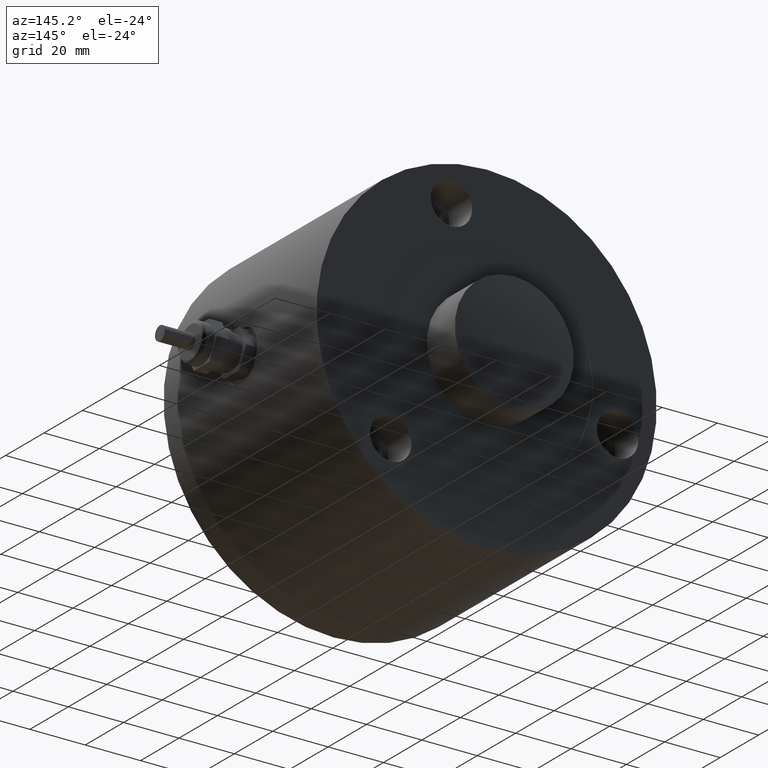
[diagram: clean part render]
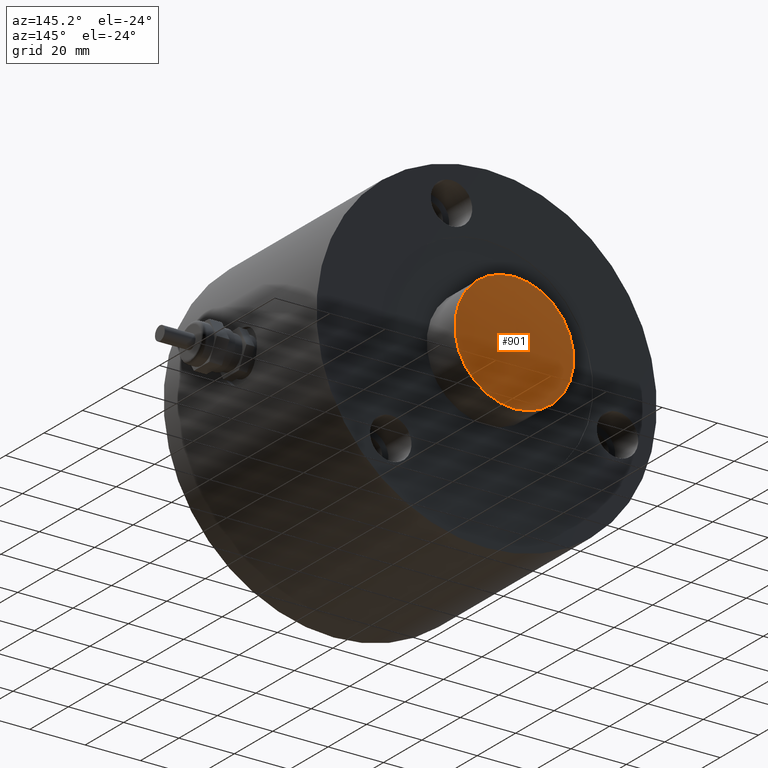
[diagram: same view with one face highlighted and labeled with its STEP entity id]
A machine part, auxiliary view. The second image highlights one B-rep face of the part: STEP entity #901.
In plain terms, the highlighted face is a freeform B-spline surface patch.
Its self-contained STEP definition (entity closure, byte-faithful):
#43=(
BOUNDED_SURFACE()
B_SPLINE_SURFACE(2,2,((#1602,#1603,#1604,#1605,#1606,#1607,#1608,#1609,
#1610),(#1611,#1612,#1613,#1614,#1615,#1616,#1617,#1618,#1619),(#1620,#1621,
#1622,#1623,#1624,#1625,#1626,#1627,#1628)),.UNSPECIFIED.,.F.,.T.,.F.)
B_SPLINE_SURFACE_WITH_KNOTS((3,3),(3,2,2,2,3),(-1.58546242477036,-1.49940126131951),
(-3.14159265358979,-1.5707963267949,0.,1.5707963267949,3.14159265358979),
 .UNSPECIFIED.)
GEOMETRIC_REPRESENTATION_ITEM()
RATIONAL_B_SPLINE_SURFACE(((1.,0.707106781186548,1.,0.707106781186548,1.,
0.707106781186548,1.,0.707106781186548,1.),(0.99907432736513,0.706452231789272,
0.99907432736513,0.706452231789272,0.99907432736513,0.706452231789272,0.99907432736513,
0.706452231789272,0.99907432736513),(1.,0.707106781186548,1.,0.707106781186548,
1.,0.707106781186548,1.,0.707106781186548,1.)))
REPRESENTATION_ITEM('')
SURFACE()
);
#85=FACE_OUTER_BOUND('',#135,.T.);
#135=EDGE_LOOP('',(#679,#680,#681,#682));
#333=CIRCLE('',#1002,21.5);
#334=CIRCLE('',#1003,21.5);
#339=CIRCLE('',#1009,250.);
#414=VERTEX_POINT('',#1587);
#415=VERTEX_POINT('',#1589);
#420=VERTEX_POINT('',#1629);
#525=EDGE_CURVE('',#414,#415,#333,.T.);
#526=EDGE_CURVE('',#415,#414,#334,.T.);
#532=EDGE_CURVE('',#414,#420,#339,.T.);
#679=ORIENTED_EDGE('',*,*,#526,.F.);
#680=ORIENTED_EDGE('',*,*,#525,.F.);
#681=ORIENTED_EDGE('',*,*,#532,.T.);
#682=ORIENTED_EDGE('',*,*,#532,.F.);
#901=ADVANCED_FACE('',(#85),#43,.F.);
#1002=AXIS2_PLACEMENT_3D('',#1590,#1185,#1186);
#1003=AXIS2_PLACEMENT_3D('',#1591,#1187,#1188);
#1009=AXIS2_PLACEMENT_3D('',#1630,#1200,#1201);
#1185=DIRECTION('center_axis',(0.,-1.,0.));
#1186=DIRECTION('ref_axis',(0.,0.,-1.));
#1187=DIRECTION('center_axis',(0.,-1.,0.));
#1188=DIRECTION('ref_axis',(0.,0.,-1.));
#1200=DIRECTION('center_axis',(-1.,0.,-1.22464679914735E-16));
#1201=DIRECTION('ref_axis',(-1.22464679914735E-16,0.,1.));
#1587=CARTESIAN_POINT('',(-2.63299061816681E-15,94.39,21.5));
#1589=CARTESIAN_POINT('',(0.,94.39,-21.4999999999999));
#1590=CARTESIAN_POINT('Origin',(0.,94.39,0.));
#1591=CARTESIAN_POINT('Origin',(0.,94.39,0.));
#1602=CARTESIAN_POINT('Ctrl Pts',(0.,95.,-1.11022302462516E-15));
#1603=CARTESIAN_POINT('Ctrl Pts',(1.11022302462516E-15,95.,-1.11022302462516E-15));
#1604=CARTESIAN_POINT('Ctrl Pts',(1.11022302462516E-15,95.,0.));
#1605=CARTESIAN_POINT('Ctrl Pts',(1.11022302462516E-15,95.,1.11022302462516E-15));
#1606=CARTESIAN_POINT('Ctrl Pts',(0.,95.,1.11022302462516E-15));
#1607=CARTESIAN_POINT('Ctrl Pts',(-1.11022302462516E-15,95.,1.11022302462516E-15));
#1608=CARTESIAN_POINT('Ctrl Pts',(-1.11022302462516E-15,95.,0.));
#1609=CARTESIAN_POINT('Ctrl Pts',(-1.11022302462516E-15,95.,-1.11022302462516E-15));
#1610=CARTESIAN_POINT('Ctrl Pts',(0.,95.,-1.11022302462516E-15));
#1611=CARTESIAN_POINT('Ctrl Pts',(0.,95.1578644735505,10.7631324339008));
#1612=CARTESIAN_POINT('Ctrl Pts',(-10.7631324339008,95.1578644735505,10.7631324339008));
#1613=CARTESIAN_POINT('Ctrl Pts',(-10.7631324339008,95.1578644735505,0.));
#1614=CARTESIAN_POINT('Ctrl Pts',(-10.7631324339008,95.1578644735505,-10.7631324339008));
#1615=CARTESIAN_POINT('Ctrl Pts',(0.,95.1578644735505,-10.7631324339008));
#1616=CARTESIAN_POINT('Ctrl Pts',(10.7631324339008,95.1578644735505,-10.7631324339008));
#1617=CARTESIAN_POINT('Ctrl Pts',(10.7631324339008,95.1578644735505,0.));
#1618=CARTESIAN_POINT('Ctrl Pts',(10.7631324339008,95.1578644735505,10.7631324339008));
#1619=CARTESIAN_POINT('Ctrl Pts',(0.,95.1578644735505,10.7631324339008));
#1620=CARTESIAN_POINT('Ctrl Pts',(0.,94.39,21.5));
#1621=CARTESIAN_POINT('Ctrl Pts',(-21.5,94.39,21.5));
#1622=CARTESIAN_POINT('Ctrl Pts',(-21.5,94.39,0.));
#1623=CARTESIAN_POINT('Ctrl Pts',(-21.5,94.39,-21.5));
#1624=CARTESIAN_POINT('Ctrl Pts',(0.,94.39,-21.5));
#1625=CARTESIAN_POINT('Ctrl Pts',(21.5,94.39,-21.5));
#1626=CARTESIAN_POINT('Ctrl Pts',(21.5,94.39,0.));
#1627=CARTESIAN_POINT('Ctrl Pts',(21.5,94.39,21.5));
#1628=CARTESIAN_POINT('Ctrl Pts',(0.,94.39,21.5));
#1629=CARTESIAN_POINT('',(0.,95.,0.));
#1630=CARTESIAN_POINT('Origin',(-4.4900365177295E-16,-154.973113678202,
3.66639305378142));